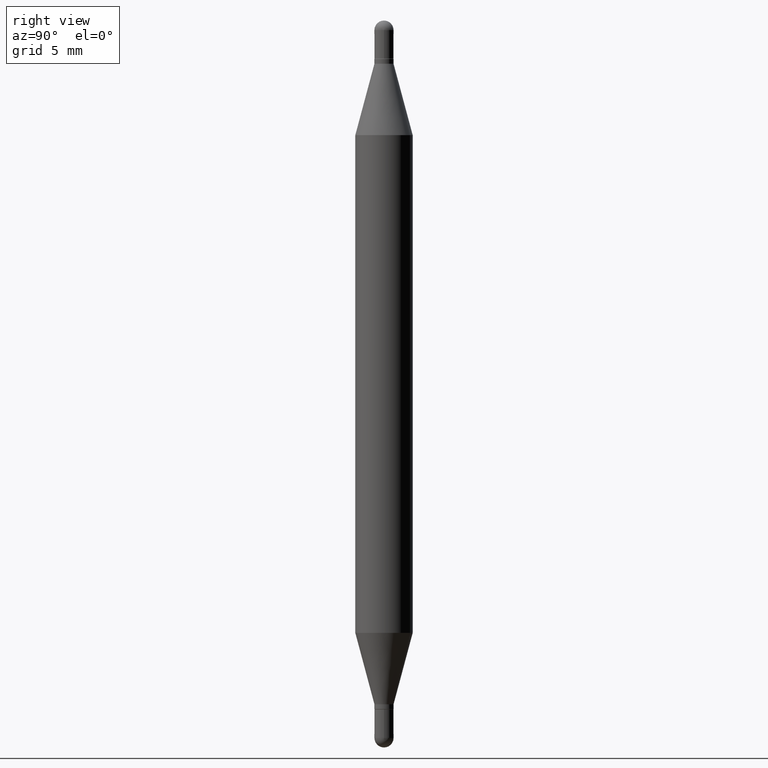
[diagram: clean part render]
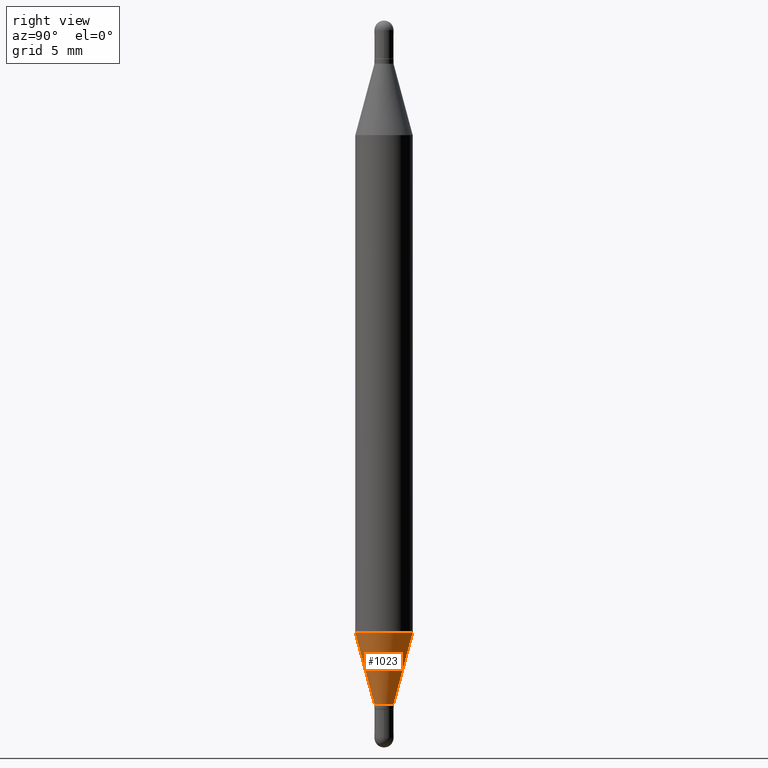
[diagram: same view with one face highlighted and labeled with its STEP entity id]
A machine part, right view. The second image highlights one B-rep face of the part: STEP entity #1023.
In plain terms, the highlighted conical surface has half-angle 15 deg.
Its self-contained STEP definition (entity closure, byte-faithful):
#17 = DIRECTION ( 'NONE',  ( -2.452431780940306437E-29, 3.481509962685831226E-15, 1.000000000000000000 ) ) ;
#25 = ORIENTED_EDGE ( 'NONE', *, *, #503, .F. ) ;
#42 = ORIENTED_EDGE ( 'NONE', *, *, #541, .F. ) ;
#94 = DIRECTION ( 'NONE',  ( -2.452431780940306437E-29, 3.481509962685831226E-15, 1.000000000000000000 ) ) ;
#150 = EDGE_CURVE ( 'NONE', #558, #527, #532, .T. ) ;
#164 = ORIENTED_EDGE ( 'NONE', *, *, #638, .T. ) ;
#201 = CARTESIAN_POINT ( 'NONE',  ( -1.375643647503831486E-16, -0.01970000000000464435, -1.407099999999999795 ) ) ;
#236 = DIRECTION ( 'NONE',  ( 1.839019923739600710E-15, 0.2588190451025250138, 0.9659258262890670910 ) ) ;
#253 = DIRECTION ( 'NONE',  ( -6.982962677686265922E-15, -1.000000000000000000, 0.000000000000000000 ) ) ;
#254 = CARTESIAN_POINT ( 'NONE',  ( -1.375643647503831486E-16, -0.01970000000000464435, -1.407099999999999795 ) ) ;
#318 = CARTESIAN_POINT ( 'NONE',  ( 1.399769189447726628E-16, 0.01969999999999484663, -1.407099999999999795 ) ) ;
#329 = AXIS2_PLACEMENT_3D ( 'NONE', #796, #721, #637 ) ;
#334 = LINE ( 'NONE', #254, #974 ) ;
#356 = CARTESIAN_POINT ( 'NONE',  ( 3.450816758961104707E-29, -4.898832668495232324E-15, -1.407099999999999795 ) ) ;
#361 = EDGE_LOOP ( 'NONE', ( #164, #704, #42, #25 ) ) ;
#381 = CARTESIAN_POINT ( 'NONE',  ( -4.123439461173431192E-16, -0.05905000000000439758, -1.260243800722163909 ) ) ;
#389 = VERTEX_POINT ( 'NONE', #201 ) ;
#503 = EDGE_CURVE ( 'NONE', #389, #716, #334, .T. ) ;
#527 = VERTEX_POINT ( 'NONE', #878 ) ;
#532 = LINE ( 'NONE', #1090, #1110 ) ;
#541 = EDGE_CURVE ( 'NONE', #716, #527, #801, .T. ) ;
#558 = VERTEX_POINT ( 'NONE', #318 ) ;
#581 = AXIS2_PLACEMENT_3D ( 'NONE', #356, #17, #679 ) ;
#605 = AXIS2_PLACEMENT_3D ( 'NONE', #753, #94, #253 ) ;
#610 = FACE_OUTER_BOUND ( 'NONE', #361, .T. ) ;
#637 = DIRECTION ( 'NONE',  ( -6.982962677686265922E-15, -1.000000000000000000, 4.626330217890369336E-15 ) ) ;
#638 = EDGE_CURVE ( 'NONE', #389, #558, #1094, .T. ) ;
#679 = DIRECTION ( 'NONE',  ( -6.982962677686265922E-15, -1.000000000000000000, 0.000000000000000000 ) ) ;
#704 = ORIENTED_EDGE ( 'NONE', *, *, #150, .T. ) ;
#716 = VERTEX_POINT ( 'NONE', #381 ) ;
#721 = DIRECTION ( 'NONE',  ( -2.452431780940306437E-29, 3.481509962685831226E-15, 1.000000000000000000 ) ) ;
#753 = CARTESIAN_POINT ( 'NONE',  ( 3.450816758961104707E-29, -4.898832668495232324E-15, -1.407099999999999795 ) ) ;
#796 = CARTESIAN_POINT ( 'NONE',  ( 3.090661948624037332E-29, -4.387551347627271097E-15, -1.260243800722164131 ) ) ;
#801 = CIRCLE ( 'NONE', #329, 0.05905000000000000526 ) ;
#830 = CONICAL_SURFACE ( 'NONE', #581, 0.01969999999999974549, 0.2617993877991502960 ) ;
#845 = DIRECTION ( 'NONE',  ( -1.807323732225330534E-15, -0.2588190451025182415, 0.9659258262890689783 ) ) ;
#878 = CARTESIAN_POINT ( 'NONE',  ( 4.051124067684273079E-16, 0.05904999999999561988, -1.260243800722164353 ) ) ;
#974 = VECTOR ( 'NONE', #845, 39.37007874015748143 ) ;
#1023 = ADVANCED_FACE ( 'NONE', ( #610 ), #830, .T. ) ;
#1090 = CARTESIAN_POINT ( 'NONE',  ( 1.399769189447724162E-16, 0.01969999999999484663, -1.407099999999999795 ) ) ;
#1094 = CIRCLE ( 'NONE', #605, 0.01969999999999974549 ) ;
#1110 = VECTOR ( 'NONE', #236, 39.37007874015748143 ) ;